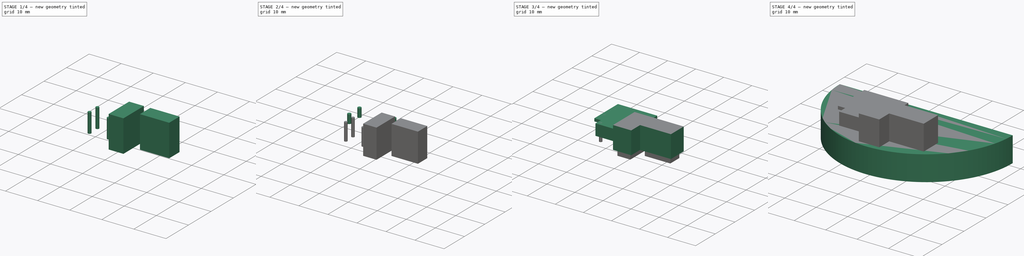
[diagram: build sequence overview — one tinted view per stage of 4, left to right]
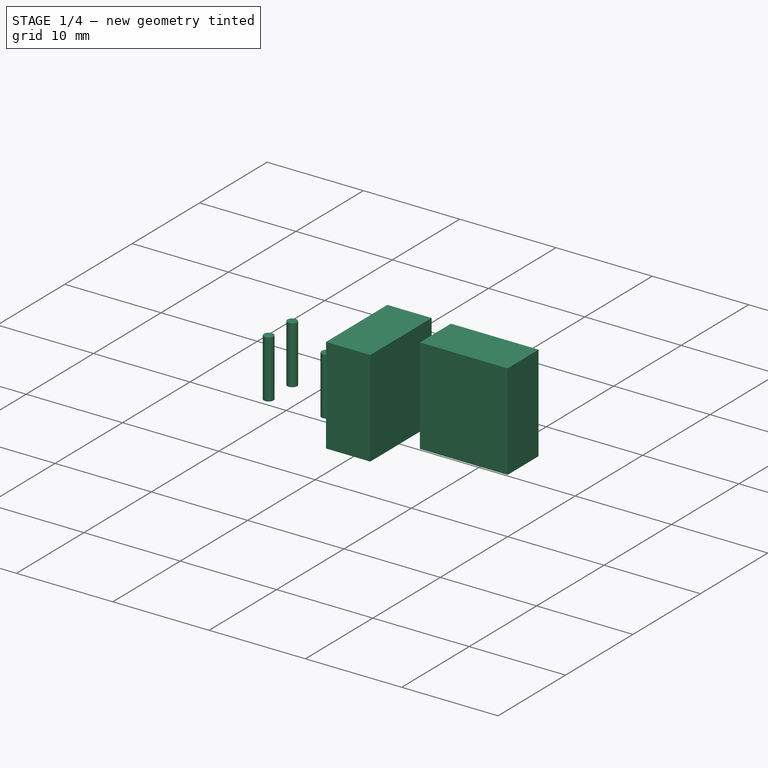
[diagram: stage 1 of 4 — iso view after this stage's code; geometry added in this stage tinted green]
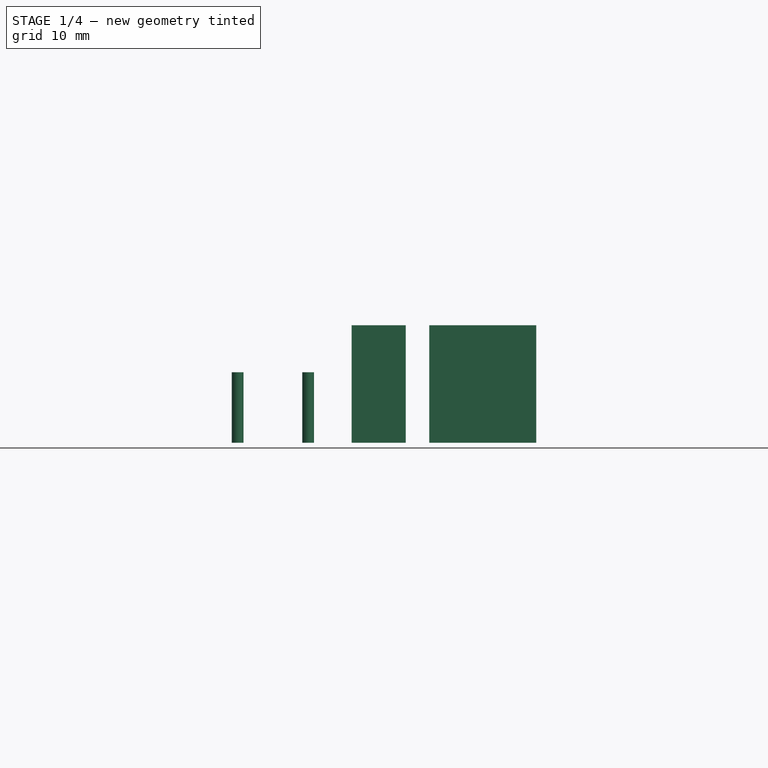
[diagram: stage 1 of 4 — front view after this stage's code; geometry added in this stage tinted green]
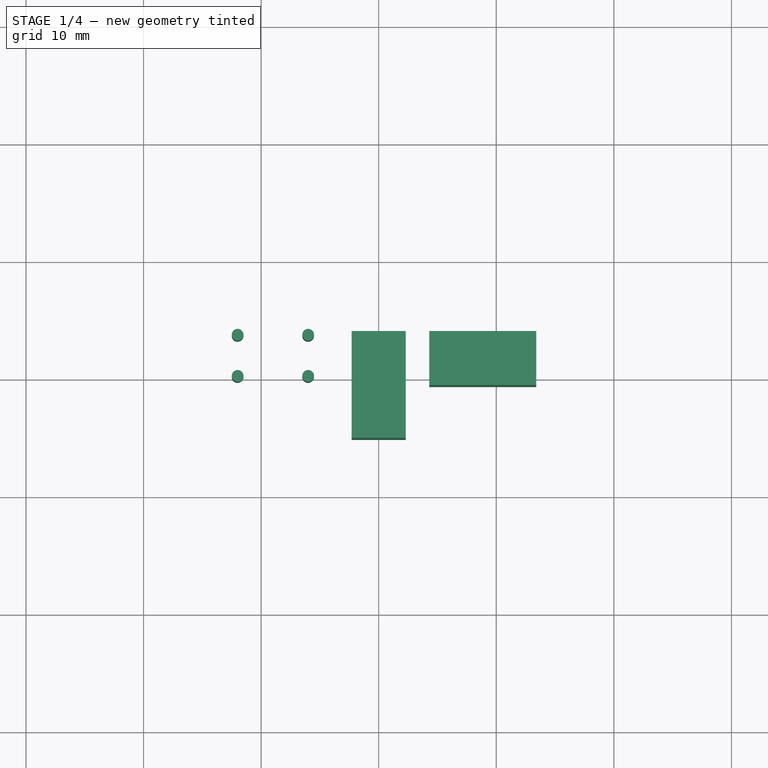
[diagram: stage 1 of 4 — top view after this stage's code; geometry added in this stage tinted green]
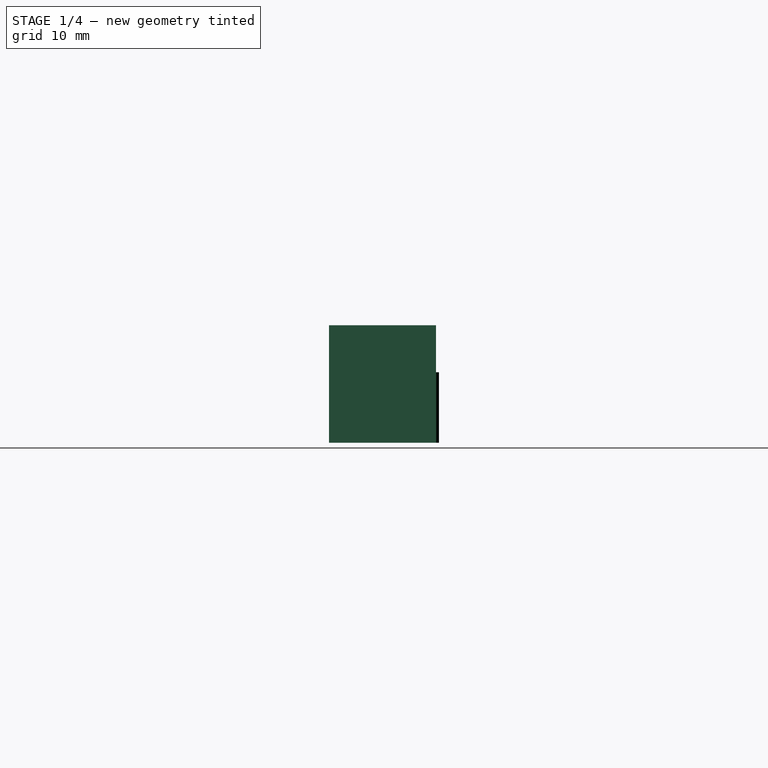
[diagram: stage 1 of 4 — right view after this stage's code; geometry added in this stage tinted green]
FCSTD DOCUMENT  (FreeCAD 0.14R3691 (Git))
Label: ButtonMount-8
License: CC-BY 3.0
LicenseURL: http://creativecommons.org/licenses/by/3.0/
objects: Sketcher::SketchObject×10, Part::Extrusion×9
note: 19 computed .brp shape members not serialized (recipe doc carries the construction recipe); baked Part::Feature solids carry a one-line shape summary decoded from their .brp

FEATURE [Part::Extrusion] Extrude007  label="Reset Leads"
  Base = -> Sketch008
  Dir = (0,0,-6)
  Solid = true
FEATURE [Part::Extrusion] Extrude008
  Base = -> Sketch009
  Dir = (0,0,-10)
  Solid = true
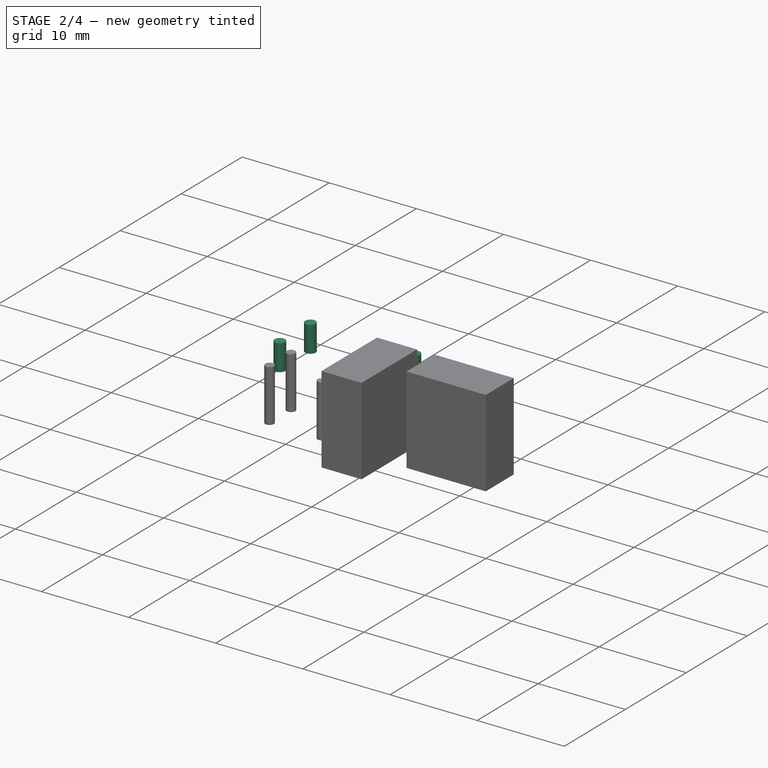
[diagram: stage 2 of 4 — iso view after this stage's code; geometry added in this stage tinted green]
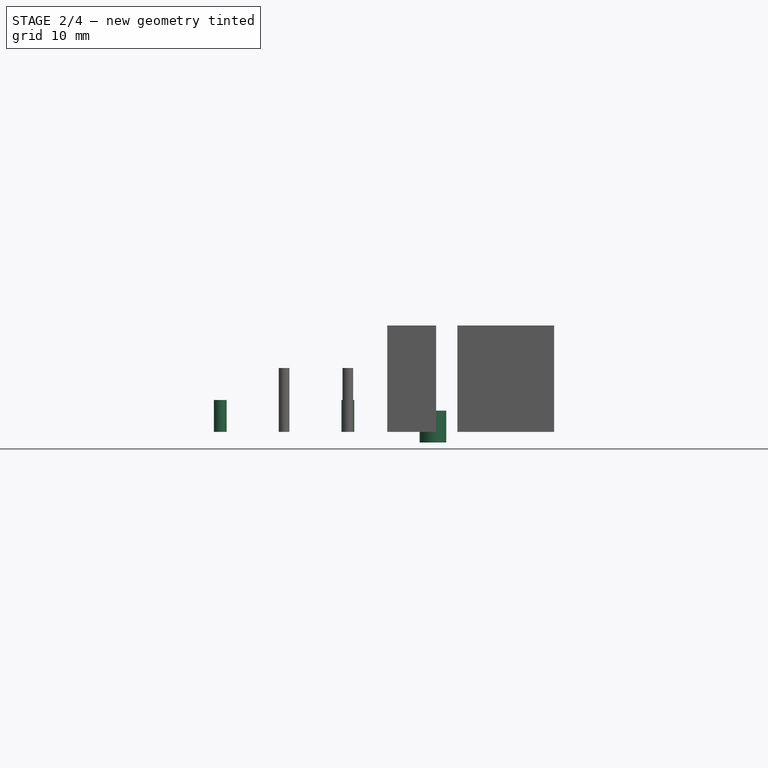
[diagram: stage 2 of 4 — front view after this stage's code; geometry added in this stage tinted green]
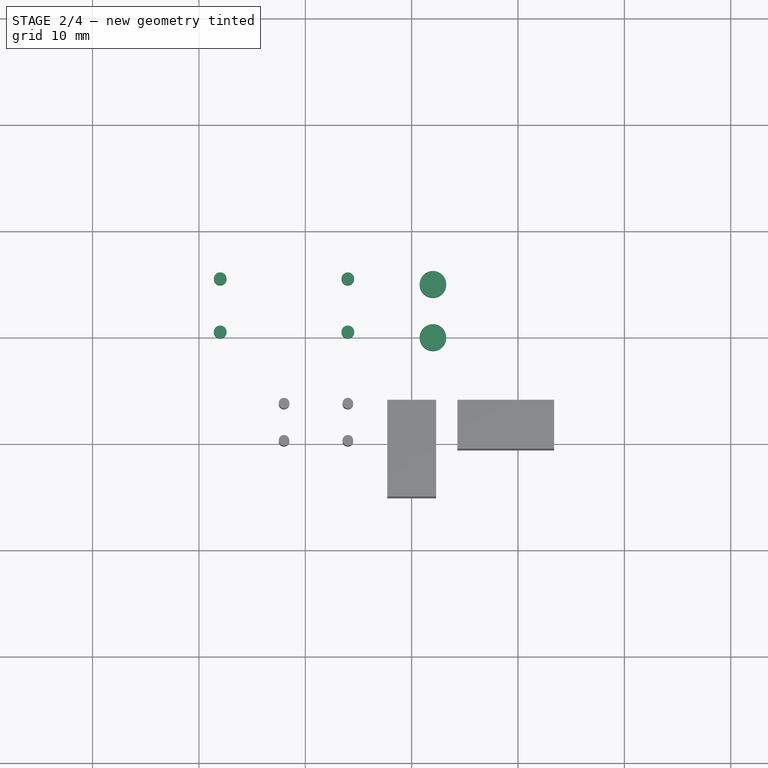
[diagram: stage 2 of 4 — top view after this stage's code; geometry added in this stage tinted green]
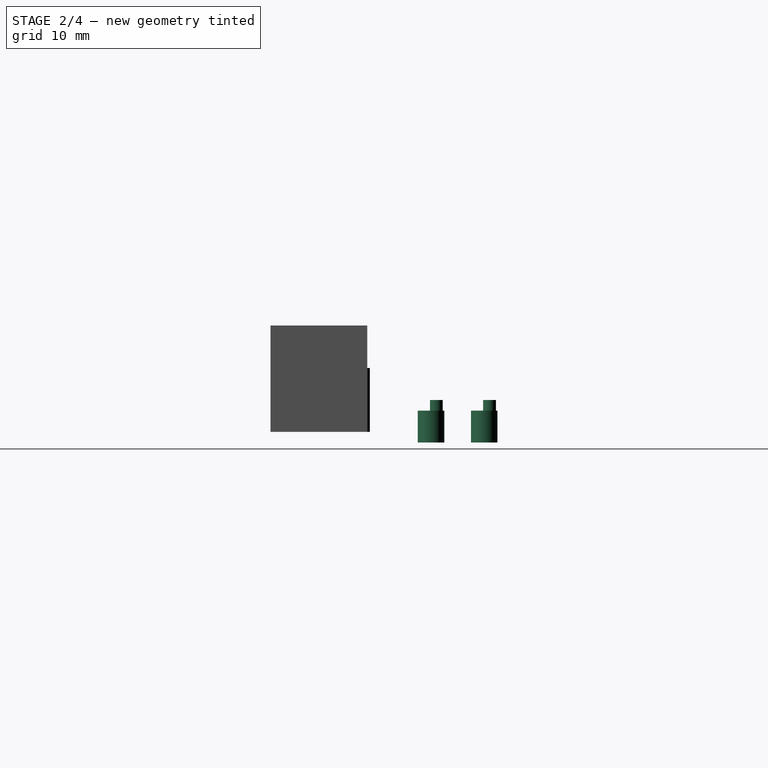
[diagram: stage 2 of 4 — right view after this stage's code; geometry added in this stage tinted green]
FEATURE [Part::Extrusion] Extrude005  label="PowerButtonLeads"
  Base = -> Sketch004
  Dir = (0,0,-3)
  Solid = true
FEATURE [Sketcher::SketchObject] Sketch007  label="MomentaryLeads"
  Placement = pos=(0,0,9) rot=(0,0,1;0rad)
  sketch-geometry (4):
    g0: Circle CenterX=-18 CenterY=-9.5 CenterZ=0 NormalX=0 NormalY=0 NormalZ=1 Radius=0.6
    g1: Circle CenterX=-18 CenterY=-4.5 CenterZ=0 NormalX=0 NormalY=0 NormalZ=1 Radius=0.6
    g2: Circle CenterX=-6 CenterY=-9.5 CenterZ=0 NormalX=0 NormalY=0 NormalZ=1 Radius=0.6
    g3: Circle CenterX=-6 CenterY=-4.5 CenterZ=0 NormalX=0 NormalY=0 NormalZ=1 Radius=0.6
  constraints (12):
    c: Equal(g3,g1)
    c: Equal(g1,g0)
    c: Equal(g0,g2)
    c: Radius(g0) = 0.6
    c: Distance(g3,g2) = 5
    c: Distance(g0,g1) = 5
    c: Distance(g0,g2) = 12
    c: Distance(g1,g3) = 12
    c: DistanceY(g-1,g1) = -4.5
    c: DistanceY(g-1,g3) = -4.5
    c: DistanceX(g-2,g3) = -6
    c: DistanceX(g-2,g2) = -6
FEATURE [Sketcher::SketchObject] Sketch008  label="ResetLeads"
  Placement = pos=(0,0,12) rot=(0,0,1;0rad)
  sketch-geometry (8):
    g0: Circle CenterX=-12 CenterY=-16.25 CenterZ=0 NormalX=0 NormalY=0 NormalZ=1 Radius=0.5
    g1: Circle CenterX=-6 CenterY=-19.75 CenterZ=0 NormalX=0 NormalY=0 NormalZ=1 Radius=0.5
    g2: Circle CenterX=-6 CenterY=-16.25 CenterZ=0 NormalX=0 NormalY=0 NormalZ=1 Radius=0.5
    g3: Circle CenterX=-12 CenterY=-19.75 CenterZ=0 NormalX=0 NormalY=0 NormalZ=1 Radius=0.5
    g4: LineSegment [constr] StartX=-13 StartY=-15 StartZ=0 EndX=-5 EndY=-15 EndZ=0
    g5: LineSegment [constr] StartX=-5 StartY=-15 StartZ=0 EndX=-5 EndY=-21 EndZ=0
    g6: LineSegment [constr] StartX=-5 StartY=-21 StartZ=0 EndX=-13 EndY=-21 EndZ=0
    g7: LineSegment [constr] StartX=-13 StartY=-21 StartZ=0 EndX=-13 EndY=-15 EndZ=0
  constraints (24):
    c: Coincident(g4,g5)
    c: Coincident(g5,g6)
    c: Coincident(g6,g7)
    c: Coincident(g7,g4)
    c: Horizontal(g4)
    c: Horizontal(g6)
    c: Vertical(g5)
    c: Vertical(g7)
    c: DistanceX(g6) = -8
    c: DistanceY(g5) = -6
    c: Equal(g2,g3)
    c: Equal(g3,g1)
    c: Equal(g1,g0)
    c: Radius(g3) = 0.5
    c: Distance(g1,g2) = 3.5
    c: Distance(g3,g0) = 3.5
    c: Distance(g0,g2) = 6
    c: Distance(g3,g1) = 6
    c: Distance(g1,g5) = 1
    c: Distance(g2,g5) = 1
    c: Distance(g1,g6) = 1.25
    c: Distance(g3,g6) = 1.25
    c: DistanceX(g-2,g4) = -5
    c: DistanceY(g-1,g4) = -15
FEATURE [Sketcher::SketchObject] Sketch009  label="USBCutout"
  Placement = pos=(0,0,16) rot=(0,0,1;0rad)
  sketch-geometry (8):
    g0: LineSegment StartX=-2.3 StartY=-16 StartZ=0 EndX=2.3 EndY=-16 EndZ=0
    g1: LineSegment StartX=2.3 StartY=-16 StartZ=0 EndX=2.3 EndY=-25.1 EndZ=0
    g2: LineSegment StartX=2.3 StartY=-25.1 StartZ=0 EndX=-2.3 EndY=-25.1 EndZ=0
    g3: LineSegment StartX=-2.3 StartY=-25.1 StartZ=0 EndX=-2.3 EndY=-16 EndZ=0
    g4: LineSegment StartX=4.3 StartY=-16 StartZ=0 EndX=13.4 EndY=-16 EndZ=0
    g5: LineSegment StartX=13.4 StartY=-16 StartZ=0 EndX=13.4 EndY=-20.6 EndZ=0
    g6: LineSegment StartX=13.4 StartY=-20.6 StartZ=0 EndX=4.3 EndY=-20.6 EndZ=0
    g7: LineSegment StartX=4.3 StartY=-20.6 StartZ=0 EndX=4.3 EndY=-16 EndZ=0
  constraints (24):
    c: Coincident(g0,g1)
    c: Coincident(g1,g2)
    c: Coincident(g2,g3)
    c: Coincident(g3,g0)
    c: Horizontal(g0)
    c: Horizontal(g2)
    c: Vertical(g1)
    c: Vertical(g3)
    c: DistanceX(g2) = -4.6
    c: Distance(g1) = 9.1
    c: Coincident(g4,g5)
    c: Coincident(g5,g6)
    c: Coincident(g6,g7)
    c: Coincident(g7,g4)
    c: Horizontal(g4)
    c: Horizontal(g6)
    c: Vertical(g5)
    c: Vertical(g7)
    c: Equal(g4,g1)
    c: Equal(g5,g2)
    c: Symmetric(g0,g0,g-2)
    c: Distance(g4,g0) = 2
    c: DistanceY(g-1,g0) = -16
    c: DistanceY(g-1,g4) = -16
FEATURE [Part::Extrusion] Extrude006  label="momentary Leads"
  Base = -> Sketch007
  Dir = (0,0,-3)
  Solid = true
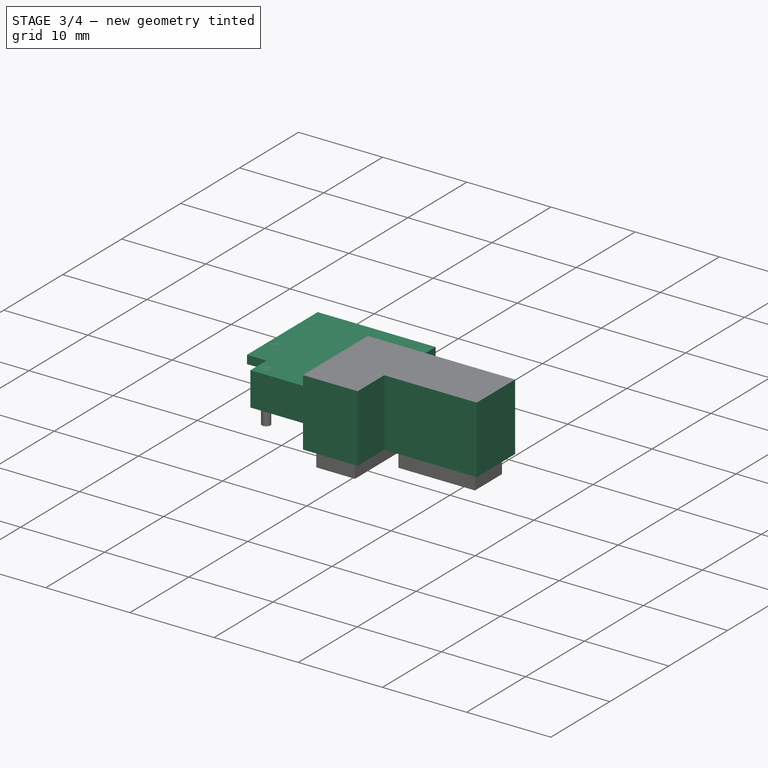
[diagram: stage 3 of 4 — iso view after this stage's code; geometry added in this stage tinted green]
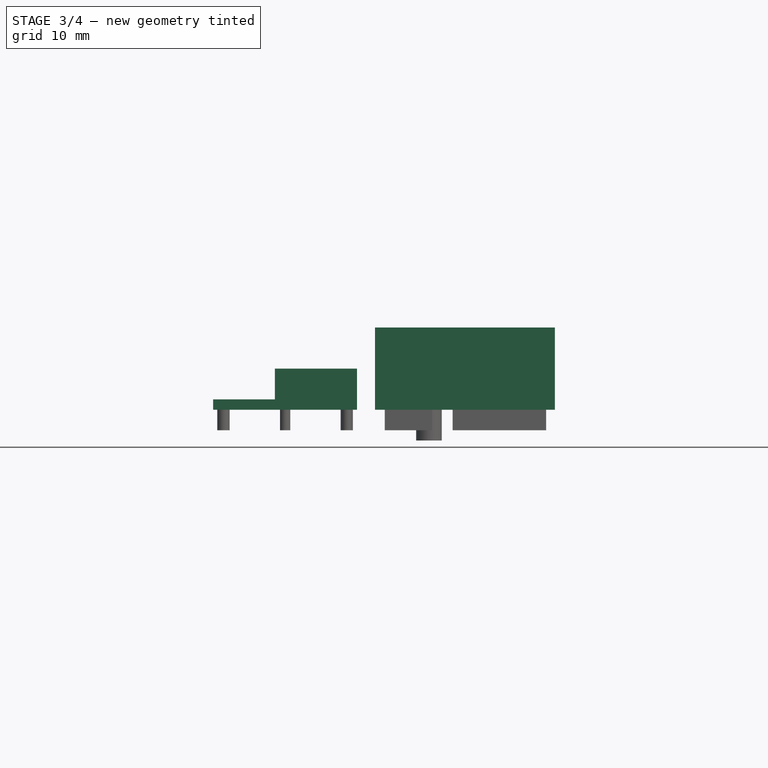
[diagram: stage 3 of 4 — front view after this stage's code; geometry added in this stage tinted green]
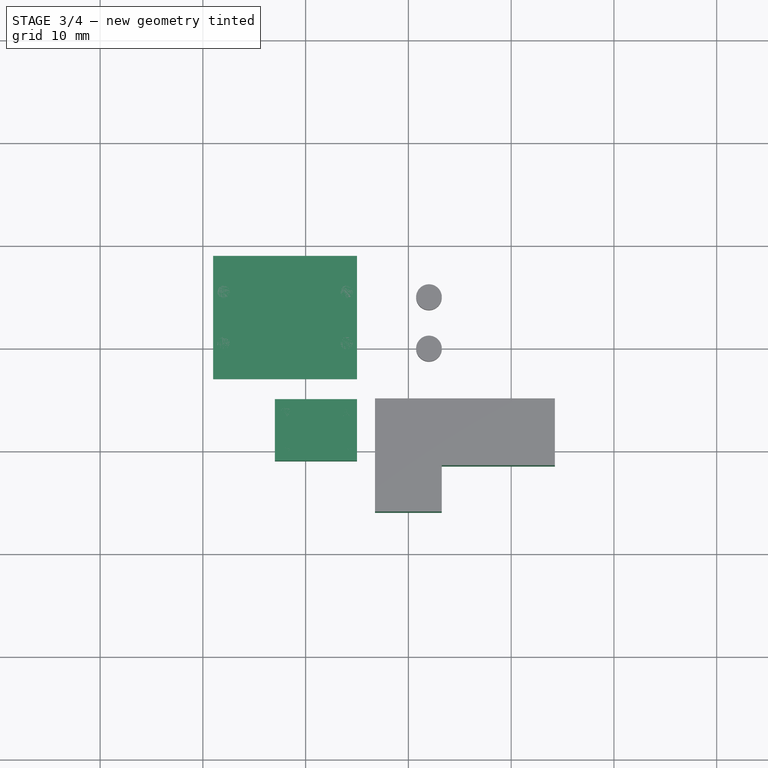
[diagram: stage 3 of 4 — top view after this stage's code; geometry added in this stage tinted green]
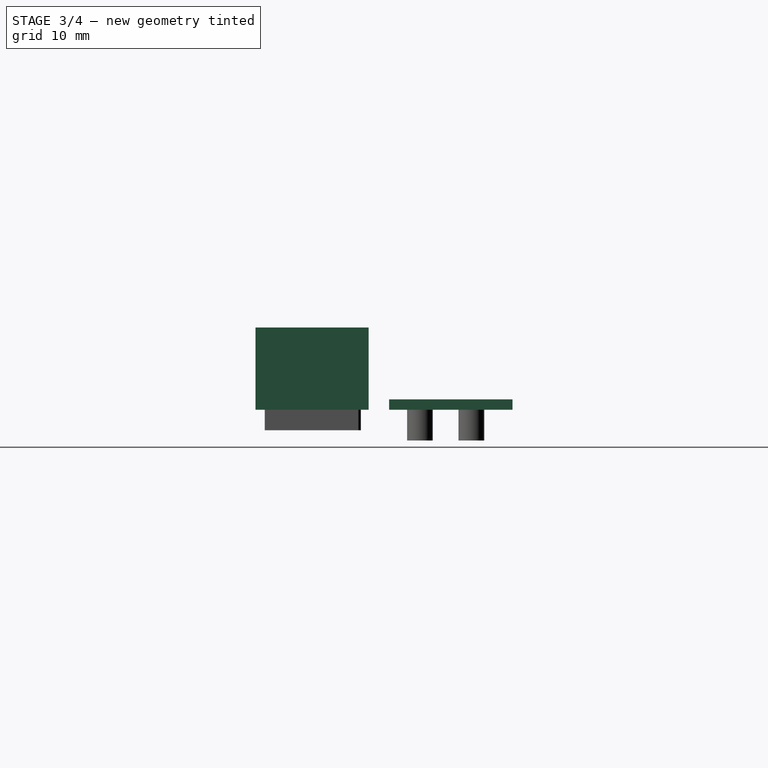
[diagram: stage 3 of 4 — right view after this stage's code; geometry added in this stage tinted green]
FEATURE [Sketcher::SketchObject] Sketch003  label="MomentaryButton"
  Placement = pos=(0,0,8) rot=(0,0,1;0rad)
  sketch-geometry (4):
    g0: LineSegment StartX=-19 StartY=-1 StartZ=0 EndX=-5 EndY=-1 EndZ=0
    g1: LineSegment StartX=-5 StartY=-1 StartZ=0 EndX=-5 EndY=-13 EndZ=0
    g2: LineSegment StartX=-5 StartY=-13 StartZ=0 EndX=-19 EndY=-13 EndZ=0
    g3: LineSegment StartX=-19 StartY=-13 StartZ=0 EndX=-19 EndY=-1 EndZ=0
  constraints (12):
    c: Coincident(g0,g1)
    c: Coincident(g1,g2)
    c: Coincident(g2,g3)
    c: Coincident(g3,g0)
    c: Horizontal(g0)
    c: Horizontal(g2)
    c: Vertical(g1)
    c: Vertical(g3)
    c: DistanceX(g2) = -14
    c: DistanceY(g1) = -12
    c: DistanceY(g-1,g0) = -1
    c: DistanceX(g-2,g0) = -5
FEATURE [Sketcher::SketchObject] Sketch004  label="Power Button"
  Placement = pos=(0,0,8) rot=(0,0,1;0rad)
  sketch-geometry (2):
    g0: Circle CenterX=2 CenterY=-10 CenterZ=0 NormalX=0 NormalY=0 NormalZ=1 Radius=1.25
    g1: Circle CenterX=2 CenterY=-5 CenterZ=0 NormalX=0 NormalY=0 NormalZ=1 Radius=1.25
  constraints (6):
    c: Radius(g0) = 1.25
    c: Equal(g1,g0)
    c: Distance(g1,g0) = 5
    c: DistanceX(g-2,g1) = 2
    c: DistanceX(g-2,g0) = 2
    c: DistanceY(g-1,g1) = -5
FEATURE [Sketcher::SketchObject] Sketch005  label="ResetButton"
  Placement = pos=(0,0,8) rot=(0,0,1;0rad)
  sketch-geometry (4):
    g0: LineSegment StartX=-13 StartY=-15 StartZ=0 EndX=-5 EndY=-15 EndZ=0
    g1: LineSegment StartX=-5 StartY=-15 StartZ=0 EndX=-5 EndY=-21 EndZ=0
    g2: LineSegment StartX=-5 StartY=-21 StartZ=0 EndX=-13 EndY=-21 EndZ=0
    g3: LineSegment StartX=-13 StartY=-21 StartZ=0 EndX=-13 EndY=-15 EndZ=0
  constraints (12):
    c: Coincident(g0,g1)
    c: Coincident(g1,g2)
    c: Coincident(g2,g3)
    c: Coincident(g3,g0)
    c: Horizontal(g0)
    c: Horizontal(g2)
    c: Vertical(g1)
    c: Vertical(g3)
    c: Distance(g2) = 8
    c: Distance(g1) = 6
    c: DistanceX(g-2,g0) = -5
    c: DistanceY(g-1,g0) = -15
FEATURE [Sketcher::SketchObject] Sketch006  label="USB Ports"
  Placement = pos=(0,0,8) rot=(0,0,1;0rad)
  sketch-geometry (8):
    g0: LineSegment StartX=3.25 StartY=-15 StartZ=0 EndX=14.25 EndY=-15 EndZ=0
    g1: LineSegment StartX=14.25 StartY=-15 StartZ=0 EndX=14.25 EndY=-21.5 EndZ=0
    g2: LineSegment StartX=14.25 StartY=-21.5 StartZ=0 EndX=3.25 EndY=-21.5 EndZ=0
    g3: LineSegment StartX=3.25 StartY=-21.5 StartZ=0 EndX=3.25 EndY=-15 EndZ=0
    g4: LineSegment StartX=-3.25 StartY=-15 StartZ=0 EndX=3.25 EndY=-15 EndZ=0
    g5: LineSegment StartX=3.25 StartY=-15 StartZ=0 EndX=3.25 EndY=-26 EndZ=0
    g6: LineSegment StartX=3.25 StartY=-26 StartZ=0 EndX=-3.25 EndY=-26 EndZ=0
    g7: LineSegment StartX=-3.25 StartY=-26 StartZ=0 EndX=-3.25 EndY=-15 EndZ=0
  constraints (23):
    c: Coincident(g0,g1)
    c: Coincident(g1,g2)
    c: Coincident(g2,g3)
    c: Coincident(g3,g0)
    c: Horizontal(g0)
    c: Horizontal(g2)
    c: Vertical(g1)
    c: Vertical(g3)
    c: Distance(g2) = 11
    c: DistanceY(g1) = -6.5
    c: Coincident(g4,g5)
    c: Coincident(g5,g6)
    c: Coincident(g6,g7)
    c: Coincident(g7,g4)
    c: Horizontal(g4)
    c: Horizontal(g6)
    c: Vertical(g5)
    c: Vertical(g7)
    c: Equal(g7,g2)
    c: Equal(g6,g1)
    c: Symmetric(g4,g4,g-2)
    c: DistanceY(g-1,g4) = -15
    c: Coincident(g0,g4)
FEATURE [Part::Extrusion] Extrude002  label="Momentary Button"
  Base = -> Sketch003
  Dir = (0,0,1)
  Solid = true
FEATURE [Part::Extrusion] Extrude003  label="USB Ports001"
  Base = -> Sketch006
  Dir = (0,0,8)
  Solid = true
FEATURE [Part::Extrusion] Extrude004  label="ResetButton001"
  Base = -> Sketch005
  Dir = (0,0,4)
  Solid = true
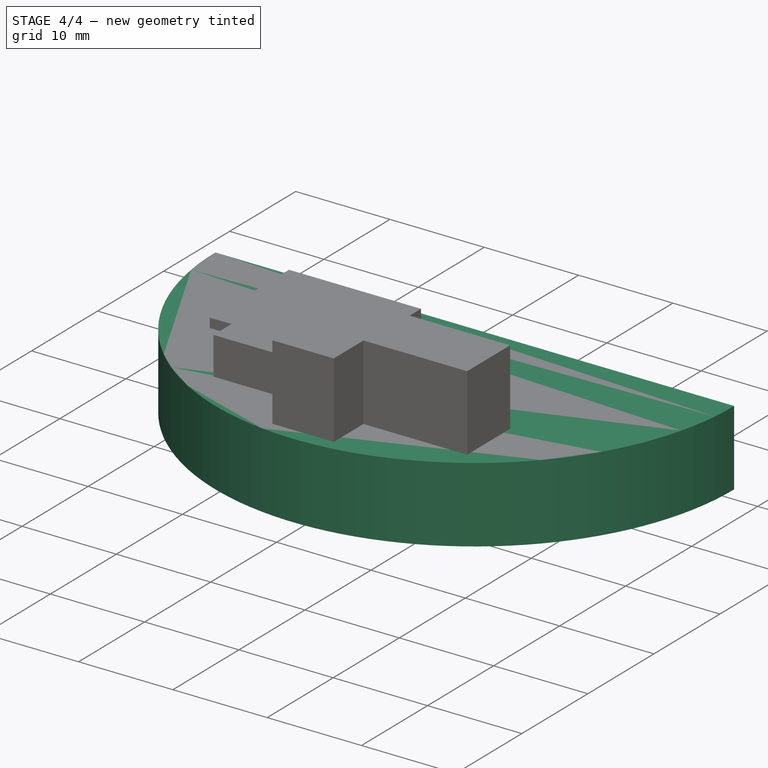
[diagram: stage 4 of 4 — iso view after this stage's code; geometry added in this stage tinted green]
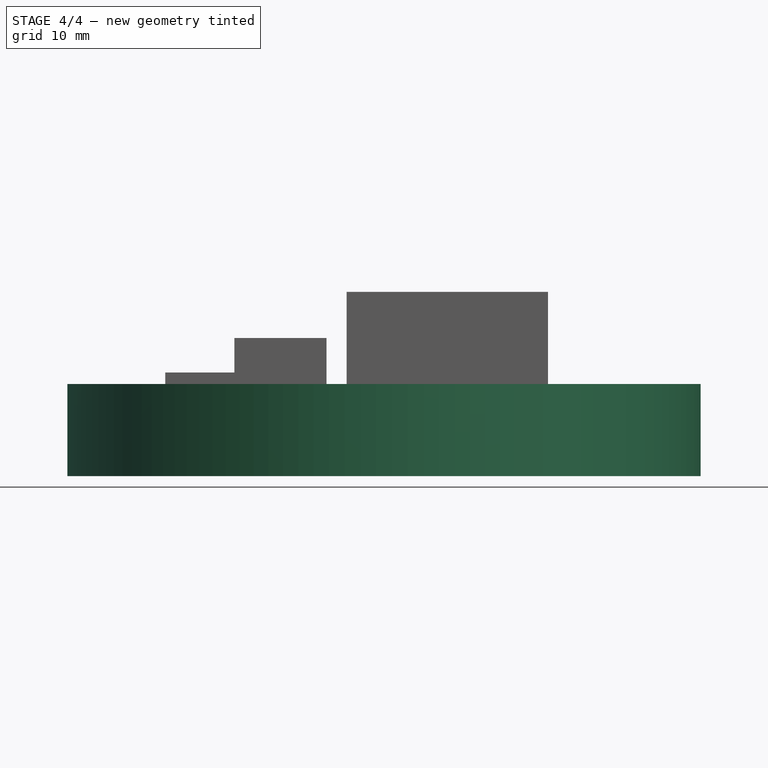
[diagram: stage 4 of 4 — front view after this stage's code; geometry added in this stage tinted green]
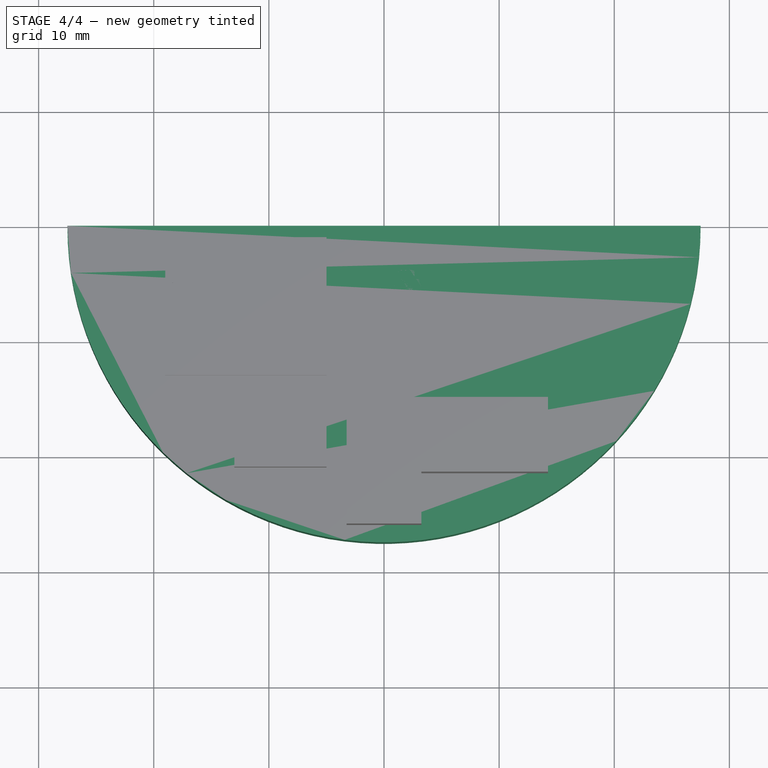
[diagram: stage 4 of 4 — top view after this stage's code; geometry added in this stage tinted green]
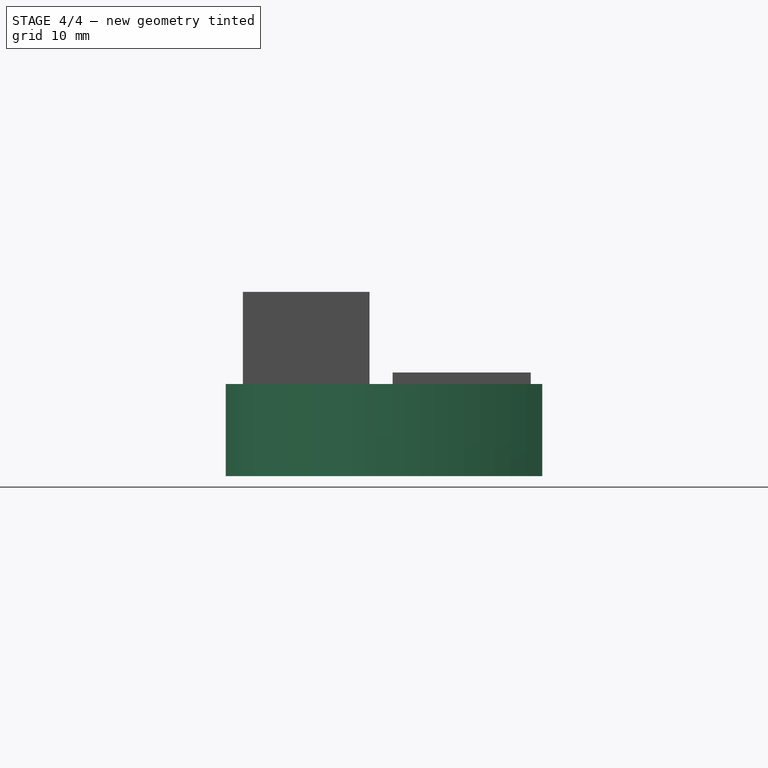
[diagram: stage 4 of 4 — right view after this stage's code; geometry added in this stage tinted green]
FEATURE [Sketcher::SketchObject] Sketch  label="MainShape"
  sketch-geometry (2):
    g0: ArcOfCircle CenterX=0 CenterY=0 CenterZ=0 NormalX=0 NormalY=0 NormalZ=1 Radius=27.5 StartAngle=3.14159 EndAngle=6.28319
    g1: LineSegment StartX=-27.5 StartY=0 StartZ=0 EndX=27.5 EndY=0 EndZ=0
  constraints (6):
    c: Coincident(g0,g-1)
    c: PointOnObject(g0,g-1)
    c: PointOnObject(g0,g-1)
    c: Coincident(g1,g0)
    c: Coincident(g1,g0)
    c: Distance(g-1,g0) = 27.5
FEATURE [Sketcher::SketchObject] Sketch001  label="MainShape001"
  sketch-geometry (2):
    g0: ArcOfCircle CenterX=0 CenterY=0 CenterZ=0 NormalX=0 NormalY=0 NormalZ=1 Radius=27.5 StartAngle=3.14159 EndAngle=6.28319
    g1: LineSegment StartX=-27.5 StartY=0 StartZ=0 EndX=27.5 EndY=0 EndZ=0
  constraints (6):
    c: Coincident(g0,g-1)
    c: PointOnObject(g0,g-1)
    c: PointOnObject(g0,g-1)
    c: Coincident(g1,g0)
    c: Coincident(g1,g0)
    c: Distance(g-1,g0) = 27.5
FEATURE [Part::Extrusion] Extrude  label="Body"
  Base = -> Sketch001
  Dir = (0,0,8)
  Solid = true
FEATURE [Sketcher::SketchObject] Sketch002  label="MainShape002"
  sketch-geometry (2):
    g0: ArcOfCircle CenterX=0 CenterY=0 CenterZ=0 NormalX=0 NormalY=0 NormalZ=1 Radius=25.5 StartAngle=3.14159 EndAngle=6.28319
    g1: LineSegment StartX=-25.5 StartY=0 StartZ=0 EndX=25.5 EndY=0 EndZ=0
  constraints (6):
    c: Coincident(g0,g-1)
    c: PointOnObject(g0,g-1)
    c: PointOnObject(g0,g-1)
    c: Coincident(g1,g0)
    c: Coincident(g1,g0)
    c: Distance(g-1,g0) = 25.5
FEATURE [Part::Extrusion] Extrude001  label="Body Cut"
  Base = -> Sketch002
  Dir = (0,0,6)
  Solid = true
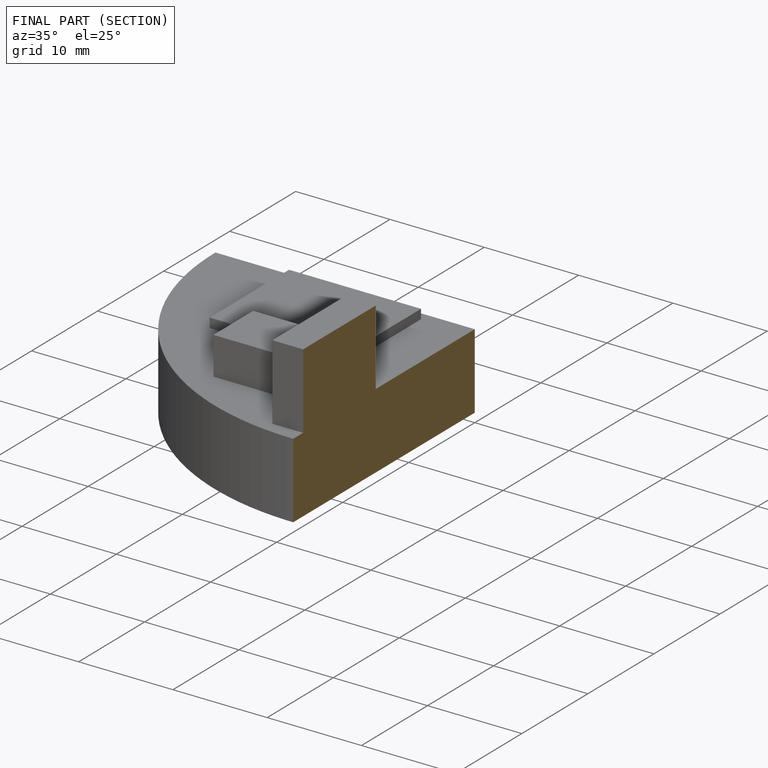
[diagram: finished part — half-section view (interior)]
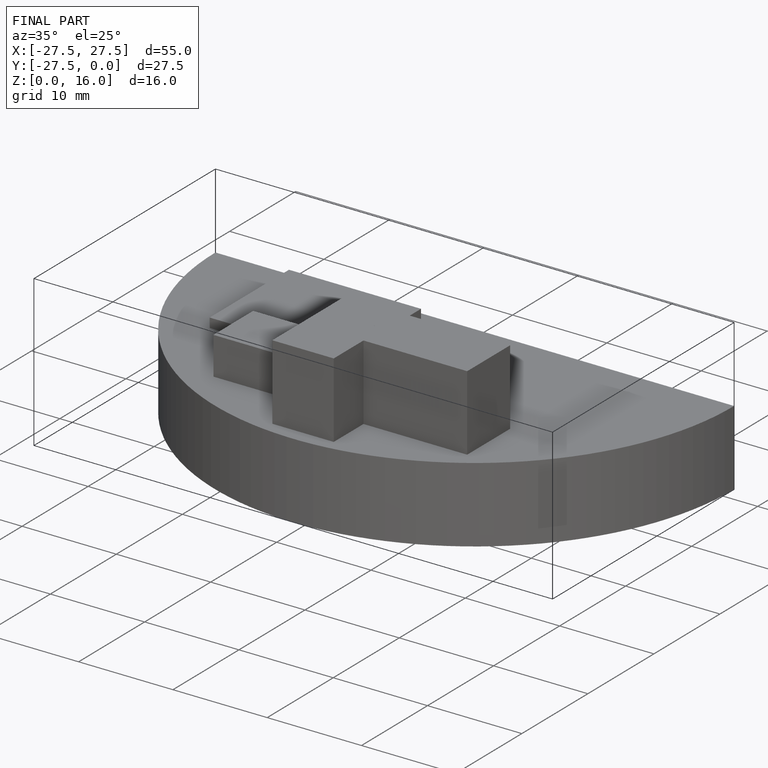
[diagram: finished part — iso view with bounding-box wireframe]
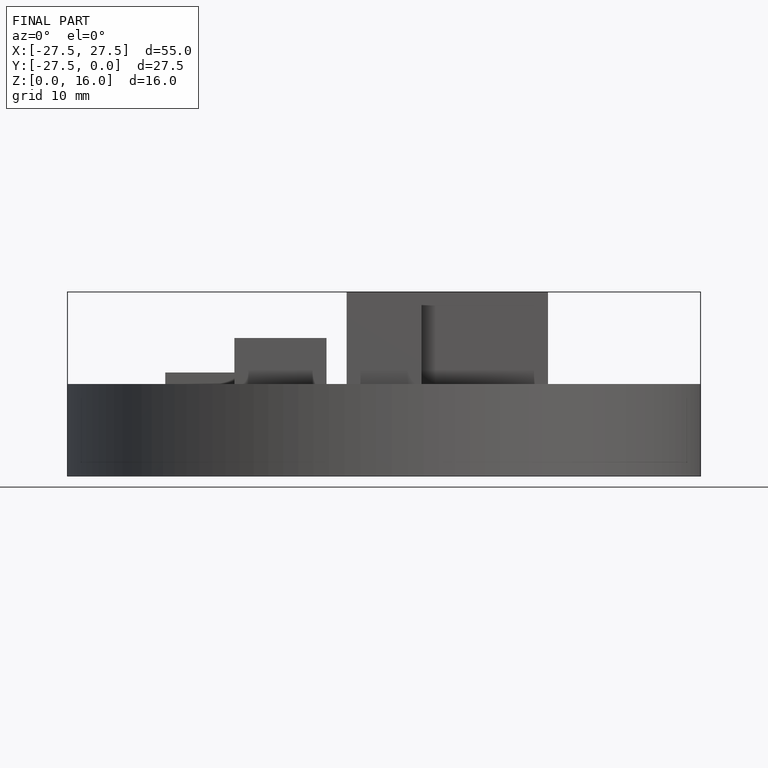
[diagram: finished part — front view with bounding-box wireframe]
